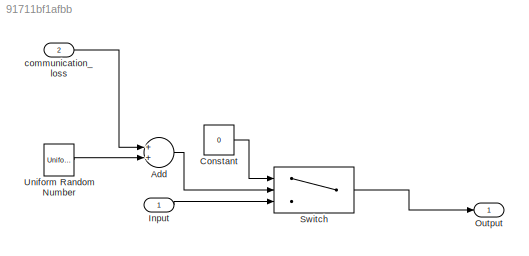
MODEL slx_91711bf1afbb
KIND model
CONFIG AbsTol = auto
CONFIG EnableMultiTasking = off
CONFIG FixedStep = auto
CONFIG MaxStep = auto
CONFIG MinStep = auto
CONFIG RelTol = 1e-3
CONFIG SampleTimeConstraint = Unconstrained
CONFIG Solver = VariableStepAuto
CONFIG SolverName = VariableStepAuto
CONFIG StartTime = 0.0
CONFIG StopTime = 10.0
BLOCK [Sum] Add
  InputSameDT = off
  OutDataTypeStr = Inherit: Inherit via internal rule
  Ports = [2, 1]
  SaturateOnIntegerOverflow = off
BLOCK [Constant] Constant
  Value = 0
BLOCK [Inport] Input
  IconDisplay = Port number
BLOCK [Outport] Output
  IconDisplay = Port number
BLOCK [Switch] Switch
  Criteria = u2 > Threshold
  InputSameDT = off
  SaturateOnIntegerOverflow = off
  Threshold = 1
BLOCK [UniformRandomNumber] Uniform Random Number
  Maximum = 999
  Minimum = 0
  SampleTime = 0.1
  Seed = 1337
BLOCK [Inport] communication_loss
  IconDisplay = Port number
  Port = 2
LINE Add:1 -> Switch:2
LINE Constant:1 -> Switch:1
LINE Input:1 -> Switch:3
LINE Switch:1 -> Output:1
LINE Uniform Random Number:1 -> Add:2
LINE communication_loss:1 -> Add:1
